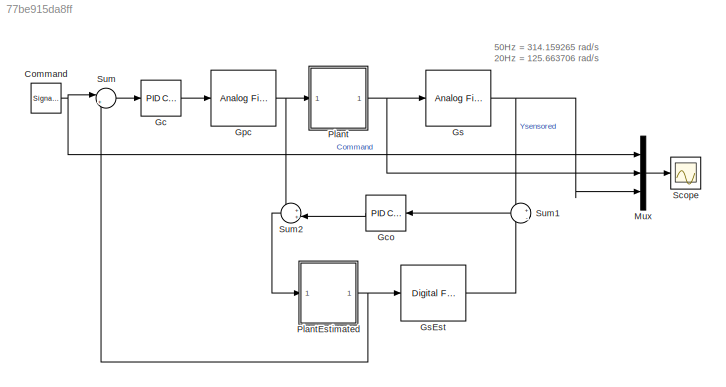
MODEL slx_77be915da8ff
KIND model
CONFIG AbsTol = auto
CONFIG FixedStep = auto
CONFIG MaxStep = auto
CONFIG MinStep = auto
CONFIG RelTol = 1e-5
CONFIG SampleTimeConstraint = Unconstrained
CONFIG Solver = VariableStepAuto
CONFIG SolverMode = Auto
CONFIG SolverName = VariableStepAuto
CONFIG StartTime = 0.0
CONFIG StopTime = 0.7
BLOCK [SignalGenerator] Command
  Frequency = 2
  Ports = [0, 1]
  WaveForm = square
BLOCK [Reference] Gc  REF=simulink/Continuous/PID Controller
  Ports = [1, 1]
  SourceBlock = simulink/Continuous/PID Controller
  SourceType = PID 1dof
BLOCK [Reference] Gco  REF=simulink/Continuous/PID Controller
  Ports = [1, 1]
  SourceBlock = simulink/Continuous/PID Controller
  SourceType = PID 1dof
BLOCK [Reference] Gpc  REF=dsparch4/Analog
Filter Design
  Ports = [1, 1]
  SourceBlock = dsparch4/Analog\nFilter Design
  SourceType = Analog Filter Design
BLOCK [Reference] Gs  REF=dsparch4/Analog
Filter Design
  Ports = [1, 1]
  SourceBlock = dsparch4/Analog\nFilter Design
  SourceType = Analog Filter Design
BLOCK [Reference] GsEst  REF=dsparch4/Digital
Filter Design
  Ports = [1, 1]
  SourceBlock = dsparch4/Digital\nFilter Design
  SourceType = Digital Filter Design
  UserDataPersistent = on
BLOCK [Mux] Mux
  DisplayOption = bar
  Inputs = 3
  Ports = [3, 1]
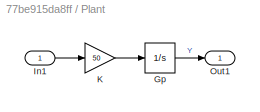
BLOCK [SubSystem] Plant
  Ports = [1, 1]
  RequestExecContextInheritance = off
  Variant = off
BLOCK [Integrator] Plant/Gp
  Ports = [1, 1]
BLOCK [Inport] Plant/In1
  IconDisplay = Port number
BLOCK [Gain] Plant/K
  Gain = 50
  OutDataTypeStr = Inherit: Inherit via internal rule
  ParamDataTypeStr = Inherit: Inherit via internal rule
  SaturateOnIntegerOverflow = off
BLOCK [Outport] Plant/Out1
  IconDisplay = Port number
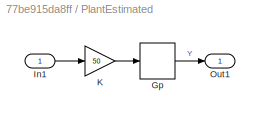
BLOCK [SubSystem] PlantEstimated
  Ports = [1, 1]
  RequestExecContextInheritance = off
  Variant = off
BLOCK [DiscreteIntegrator] PlantEstimated/Gp
  ICPrevOutput = DiscIntNeverNeededParam
  ICPrevScaledInput = DiscIntNeverNeededParam
  InitialConditionSetting = State (most efficient)
  Ports = [1, 1]
  SampleTime = 0.001
BLOCK [Inport] PlantEstimated/In1
  IconDisplay = Port number
BLOCK [Gain] PlantEstimated/K
  Gain = 50
  OutDataTypeStr = Inherit: Inherit via internal rule
  ParamDataTypeStr = Inherit: Inherit via internal rule
  SaturateOnIntegerOverflow = off
BLOCK [Outport] PlantEstimated/Out1
  IconDisplay = Port number
BLOCK [Scope] Scope
  Ports = [1]
  ScopeSpecificationString = Simulink.scopes.TimeScopeBlockCfg('CurrentConfiguration', extmgr.ConfigurationSet(extmgr.Configuration('Core','General UI',true),extmgr.Configuration('Core','Source UI',true),extmgr.Configuration('Sources','WiredSimulink',true),extmgr.Configuration('Visuals','Time Domain',true,'SerializedDisplays',{struct('MinYLimReal','-3.16559','MaxYLimReal','3.16798','YLabelReal','','MinYLimMag','0.00000','MaxY...<+1750ch>
BLOCK [Sum] Sum
  IconShape = round
  InputSameDT = off
  Inputs = |+-
  OutDataTypeStr = Inherit: Inherit via internal rule
  Ports = [2, 1]
  SaturateOnIntegerOverflow = off
BLOCK [Sum] Sum1
  IconShape = round
  InputSameDT = off
  Inputs = +|-
  OutDataTypeStr = Inherit: Inherit via internal rule
  Ports = [2, 1]
  SaturateOnIntegerOverflow = off
BLOCK [Sum] Sum2
  IconShape = round
  InputSameDT = off
  Inputs = ++|
  OutDataTypeStr = Inherit: Inherit via internal rule
  Ports = [2, 1]
  SaturateOnIntegerOverflow = off
ANNOTATION (root): 50Hz = 314.159265 rad/s 20Hz = 125.663706 rad/s
NET Command:1 -> Mux:1, Sum:1
LINE Gc:1 -> Gpc:1
LINE Gco:1 -> Sum2:2
NET Gpc:1 -> Plant:1, Sum2:1
NET Gs:1 -> Mux:3, Sum1:1
LINE GsEst:1 -> Sum1:2
LINE Mux:1 -> Scope:1
LINE Plant/Gp:1 -> Plant/Out1:1
LINE Plant/In1:1 -> Plant/K:1
LINE Plant/K:1 -> Plant/Gp:1
NET Plant:1 -> Gs:1, Mux:2
LINE PlantEstimated/Gp:1 -> PlantEstimated/Out1:1
LINE PlantEstimated/In1:1 -> PlantEstimated/K:1
LINE PlantEstimated/K:1 -> PlantEstimated/Gp:1
NET PlantEstimated:1 -> GsEst:1, Sum:2
LINE Sum1:1 -> Gco:1
LINE Sum2:1 -> PlantEstimated:1
LINE Sum:1 -> Gc:1
note: NET lines group one-source signal fan-out (src -> all destinations, sorted); 1:1 wires keep LINE
